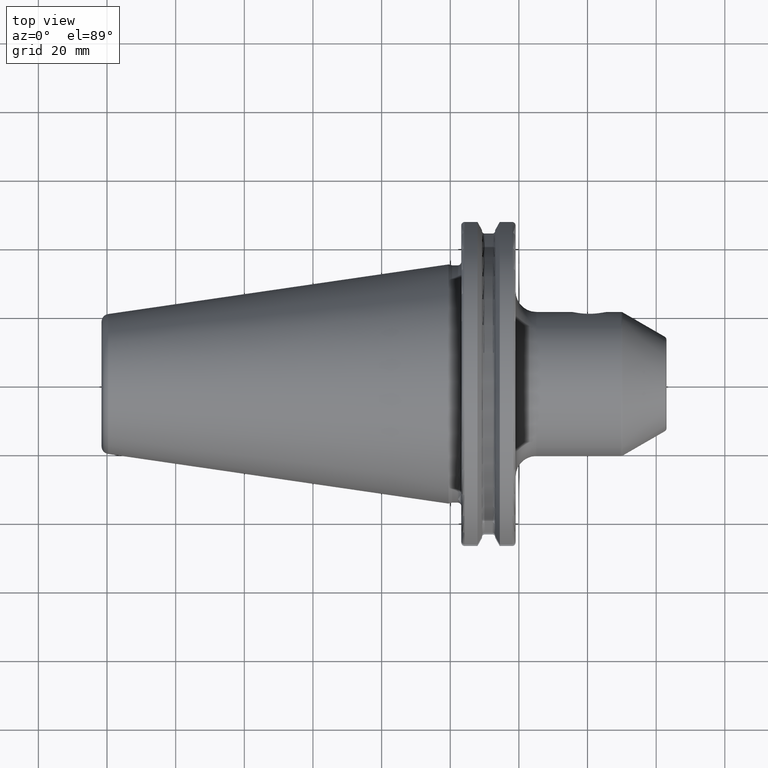
[diagram: clean part render]
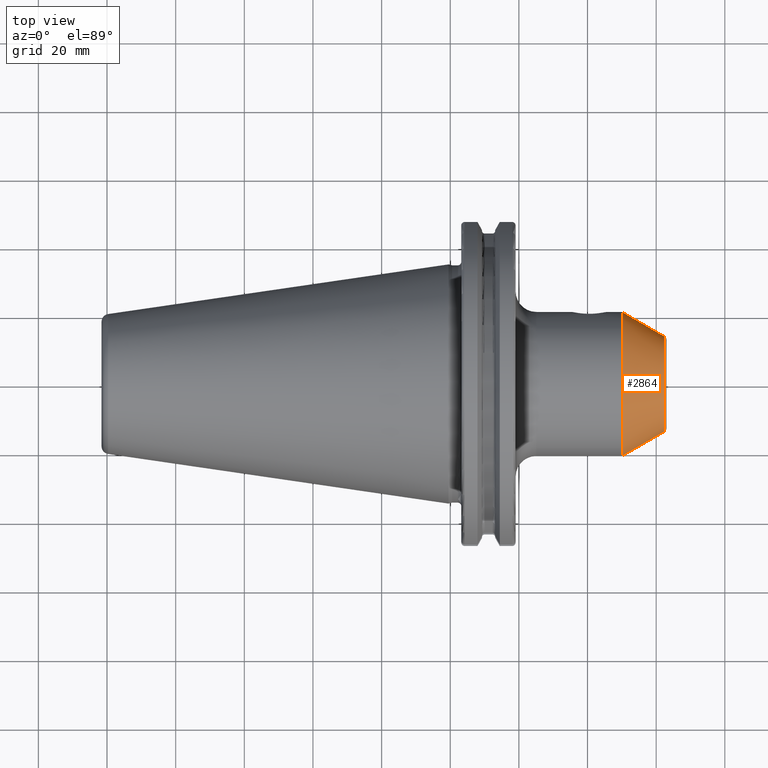
[diagram: same view with one face highlighted and labeled with its STEP entity id]
A machine part, top view. The second image highlights one B-rep face of the part: STEP entity #2864.
In plain terms, the highlighted conical surface has half-angle 30 deg.
Its self-contained STEP definition (entity closure, byte-faithful):
#1109=DIRECTION('',(-8.660254037844E-1,-5.E-1,-9.455816635609E-14));
#1110=VECTOR('',#1109,1.416580753731E1);
#1111=CARTESIAN_POINT('',(6.25E1,-1.378312163513E1,2.030660751038E-12));
#1112=LINE('',#1111,#1110);
#1118=DIRECTION('',(-8.660254037844E-1,5.E-1,9.464547849017E-14));
#1119=VECTOR('',#1118,1.416580753731E1);
#1120=CARTESIAN_POINT('',(6.25E1,1.378312163513E1,-2.034146259091E-12));
#1121=LINE('',#1120,#1119);
#1177=CARTESIAN_POINT('',(5.023205080757E1,0.E0,0.E0));
#1178=DIRECTION('',(-1.E0,0.E0,0.E0));
#1179=DIRECTION('',(0.E0,-1.E0,0.E0));
#1180=AXIS2_PLACEMENT_3D('',#1177,#1178,#1179);
#1182=CARTESIAN_POINT('',(6.25E1,0.E0,0.E0));
#1183=DIRECTION('',(-1.E0,0.E0,0.E0));
#1184=DIRECTION('',(0.E0,-1.E0,0.E0));
#1185=AXIS2_PLACEMENT_3D('',#1182,#1183,#1184);
#1639=CARTESIAN_POINT('',(5.023205080757E1,2.086602540378E1,0.E0));
#1640=CARTESIAN_POINT('',(5.023205080757E1,-2.086602540378E1,0.E0));
#1641=VERTEX_POINT('',#1639);
#1642=VERTEX_POINT('',#1640);
#1643=CARTESIAN_POINT('',(6.25E1,1.378312163513E1,0.E0));
#1644=CARTESIAN_POINT('',(6.25E1,-1.378312163513E1,0.E0));
#1645=VERTEX_POINT('',#1643);
#1646=VERTEX_POINT('',#1644);
#2852=CARTESIAN_POINT('',(5.636602540378E1,0.E0,0.E0));
#2853=DIRECTION('',(-1.E0,0.E0,0.E0));
#2854=DIRECTION('',(0.E0,1.E0,0.E0));
#2855=AXIS2_PLACEMENT_3D('',#2852,#2853,#2854);
#2856=CONICAL_SURFACE('',#2855,1.732457351946E1,3.E1);
#2857=ORIENTED_EDGE('',*,*,#2846,.T.);
#2858=ORIENTED_EDGE('',*,*,#2805,.F.);
#2860=ORIENTED_EDGE('',*,*,#2859,.F.);
#2861=ORIENTED_EDGE('',*,*,#2802,.T.);
#2862=EDGE_LOOP('',(#2857,#2858,#2860,#2861));
#2863=FACE_OUTER_BOUND('',#2862,.F.);
#2864=ADVANCED_FACE('',(#2863),#2856,.T.);
#1181=CIRCLE('',#1180,2.086602540378E1);
#1186=CIRCLE('',#1185,1.378312163513E1);
#2802=EDGE_CURVE('',#1646,#1642,#1112,.T.);
#2805=EDGE_CURVE('',#1645,#1641,#1121,.T.);
#2846=EDGE_CURVE('',#1642,#1641,#1181,.T.);
#2859=EDGE_CURVE('',#1646,#1645,#1186,.T.);